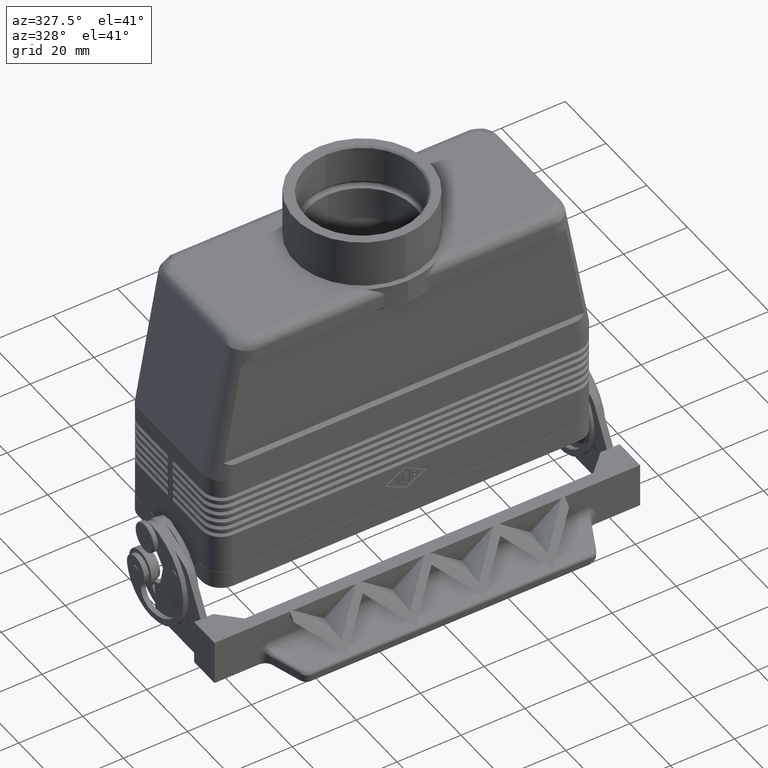
[diagram: clean part render]
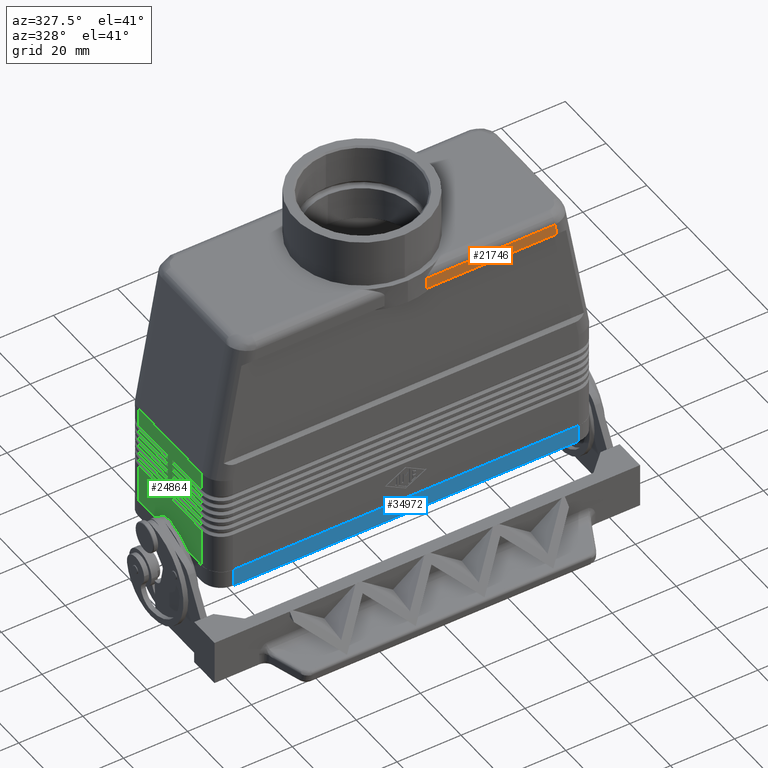
[diagram: same view with three faces highlighted in distinct colors, each labeled with its STEP entity id]
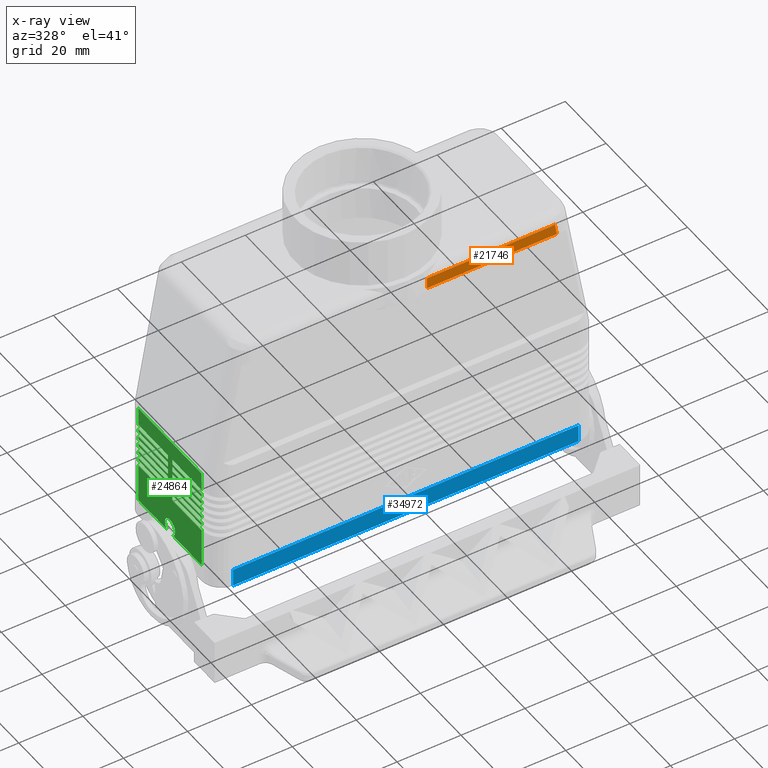
[diagram: x-ray of the same camera — body ghosted, the three highlighted faces saturated]
A machine part, auxiliary view with three faces highlighted in distinct colors.
The next image is the same camera in x-ray (body ghosted, the three faces saturated) — at least one of them is partly hidden behind the body in this view.
Their STEP definitions:

[orange] entity #21746 — the highlighted planar face has unit normal (0, -1, 0).
#5043=CARTESIAN_POINT('',(6.633249580710817,-21.499999999999993,79.000000000000028));
#5044=VERTEX_POINT('',#5043);
#5056=CARTESIAN_POINT('',(46.589870629284249,-21.499999999999993,79.000000000000028));
#5057=VERTEX_POINT('',#5056);
#5058=CARTESIAN_POINT('',(6.633249580710817,-21.499999999999993,79.000000000000028));
#5059=DIRECTION('',(1.0,0.0,0.0));
#5060=VECTOR('',#5059,39.956621048573432);
#5061=LINE('',#5058,#5060);
#5062=EDGE_CURVE('',#5044,#5057,#5061,.T.);
#5297=CARTESIAN_POINT('',(6.633249580710817,-21.499999999999993,75.500000000000000));
#5298=VERTEX_POINT('',#5297);
#5306=CARTESIAN_POINT('',(6.633249580710817,-21.499999999999993,79.000000000000028));
#5307=DIRECTION('',(0.0,0.0,-1.0));
#5308=VECTOR('',#5307,3.500000000000028);
#5309=LINE('',#5306,#5308);
#5310=EDGE_CURVE('',#5044,#5298,#5309,.T.);
#5430=CARTESIAN_POINT('',(47.207015061763883,-21.500000000000000,75.500000000000000));
#5431=VERTEX_POINT('',#5430);
#5432=CARTESIAN_POINT('',(46.589870629284249,-21.499999999999993,79.000000000000028));
#5433=DIRECTION('',(0.173648177666931,-1.999280E-015,-0.984807753012208));
#5434=VECTOR('',#5433,3.553993141600137);
#5435=LINE('',#5432,#5434);
#5436=EDGE_CURVE('',#5057,#5431,#5435,.T.);
#21730=CARTESIAN_POINT('',(54.0,-21.499999999999993,5.500000000000000));
#21731=DIRECTION('',(0.0,-1.0,0.0));
#21732=DIRECTION('',(0.0,0.0,-1.0));
#21733=AXIS2_PLACEMENT_3D('',#21730,#21731,#21732);
#21734=PLANE('',#21733);
#21735=ORIENTED_EDGE('',*,*,#5310,.T.);
#21736=CARTESIAN_POINT('',(6.633249580710817,-21.499999999999993,75.500000000000000));
#21737=DIRECTION('',(1.0,0.0,0.0));
#21738=VECTOR('',#21737,40.573765481053066);
#21739=LINE('',#21736,#21738);
#21740=EDGE_CURVE('',#5298,#5431,#21739,.T.);
#21741=ORIENTED_EDGE('',*,*,#21740,.T.);
#21742=ORIENTED_EDGE('',*,*,#5436,.F.);
#21743=ORIENTED_EDGE('',*,*,#5062,.F.);
#21744=EDGE_LOOP('',(#21735,#21741,#21742,#21743));
#21745=FACE_OUTER_BOUND('',#21744,.T.);
#21746=ADVANCED_FACE('',(#21745),#21734,.T.);

[blue] entity #34972 — the highlighted planar face has unit normal (0, -1, 0).
#34634=CARTESIAN_POINT('',(-54.0,-21.549999999999994,5.500000000000000));
#34635=VERTEX_POINT('',#34634);
#34643=CARTESIAN_POINT('',(54.0,-21.549999999999994,5.500000000000000));
#34644=VERTEX_POINT('',#34643);
#34645=CARTESIAN_POINT('',(54.0,-21.549999999999994,5.500000000000000));
#34646=DIRECTION('',(-1.0,0.0,0.0));
#34647=VECTOR('',#34646,108.0);
#34648=LINE('',#34645,#34647);
#34649=EDGE_CURVE('',#34644,#34635,#34648,.T.);
#34930=CARTESIAN_POINT('',(54.0,-21.549999999999994,0.0));
#34931=VERTEX_POINT('',#34930);
#34932=CARTESIAN_POINT('',(54.0,-21.549999999999994,0.0));
#34933=DIRECTION('',(0.0,0.0,1.0));
#34934=VECTOR('',#34933,5.500000000000000);
#34935=LINE('',#34932,#34934);
#34936=EDGE_CURVE('',#34931,#34644,#34935,.T.);
#34949=CARTESIAN_POINT('',(54.0,-21.549999999999994,0.0));
#34950=DIRECTION('',(0.0,-1.0,0.0));
#34951=DIRECTION('',(0.0,0.0,-1.0));
#34952=AXIS2_PLACEMENT_3D('',#34949,#34950,#34951);
#34953=PLANE('',#34952);
#34954=ORIENTED_EDGE('',*,*,#34649,.T.);
#34955=CARTESIAN_POINT('',(-54.0,-21.549999999999994,0.0));
#34956=VERTEX_POINT('',#34955);
#34957=CARTESIAN_POINT('',(-54.0,-21.549999999999994,0.0));
#34958=DIRECTION('',(0.0,0.0,1.0));
#34959=VECTOR('',#34958,5.500000000000000);
#34960=LINE('',#34957,#34959);
#34961=EDGE_CURVE('',#34956,#34635,#34960,.T.);
#34962=ORIENTED_EDGE('',*,*,#34961,.F.);
#34963=CARTESIAN_POINT('',(-54.0,-21.549999999999994,0.0));
#34964=DIRECTION('',(1.0,0.0,0.0));
#34965=VECTOR('',#34964,108.0);
#34966=LINE('',#34963,#34965);
#34967=EDGE_CURVE('',#34956,#34931,#34966,.T.);
#34968=ORIENTED_EDGE('',*,*,#34967,.T.);
#34969=ORIENTED_EDGE('',*,*,#34936,.T.);
#34970=EDGE_LOOP('',(#34954,#34962,#34968,#34969));
#34971=FACE_OUTER_BOUND('',#34970,.T.);
#34972=ADVANCED_FACE('',(#34971),#34953,.T.);

[green] entity #24864 — the highlighted planar face has unit normal (-1, 0, 0).
#7551=CARTESIAN_POINT('',(-60.0,-3.061516E-016,9.999999999999979));
#7552=VERTEX_POINT('',#7551);
#7585=CARTESIAN_POINT('',(-60.0,-1.499999999999964,5.500000000000000));
#7586=VERTEX_POINT('',#7585);
#7593=CARTESIAN_POINT('',(-60.0,0.0,7.500000000000000));
#7594=DIRECTION('',(1.0,0.0,0.0));
#7595=DIRECTION('',(0.0,0.0,1.0));
#7596=AXIS2_PLACEMENT_3D('',#7593,#7594,#7595);
#7597=CIRCLE('',#7596,2.499999999999978);
#7598=EDGE_CURVE('',#7552,#7586,#7597,.T.);
#16441=CARTESIAN_POINT('',(-60.0,1.499999999999964,5.500000000000000));
#16442=VERTEX_POINT('',#16441);
#16443=CARTESIAN_POINT('',(-60.0,0.0,7.500000000000000));
#16444=DIRECTION('',(1.0,0.0,0.0));
#16445=DIRECTION('',(0.0,0.0,1.0));
#16446=AXIS2_PLACEMENT_3D('',#16443,#16444,#16445);
#16447=CIRCLE('',#16446,2.499999999999978);
#16448=EDGE_CURVE('',#16442,#7552,#16447,.T.);
#17364=CARTESIAN_POINT('',(-60.0,15.500000000000000,5.500000000000000));
#17365=VERTEX_POINT('',#17364);
#17366=CARTESIAN_POINT('',(-60.0,1.499999999999964,5.500000000000000));
#17367=DIRECTION('',(0.0,1.0,0.0));
#17368=VECTOR('',#17367,14.000000000000036);
#17369=LINE('',#17366,#17368);
#17370=EDGE_CURVE('',#16442,#17365,#17369,.T.);
#20966=CARTESIAN_POINT('',(-60.0,15.500000000000000,37.500000000000000));
#20967=VERTEX_POINT('',#20966);
#20974=CARTESIAN_POINT('',(-60.0,-15.499999999999996,37.500000000000000));
#20975=VERTEX_POINT('',#20974);
#20976=CARTESIAN_POINT('',(-60.0,-15.499999999999996,37.500000000000000));
#20977=DIRECTION('',(0.0,1.0,0.0));
#20978=VECTOR('',#20977,30.999999999999996);
#20979=LINE('',#20976,#20978);
#20980=EDGE_CURVE('',#20975,#20967,#20979,.T.);
#22152=CARTESIAN_POINT('',(-60.0,-1.350560861179073,19.332842712474609));
#22153=VERTEX_POINT('',#22152);
#22161=CARTESIAN_POINT('',(-60.0,-0.950560861179072,18.767157287525382));
#22162=VERTEX_POINT('',#22161);
#22163=CARTESIAN_POINT('',(-60.0,-1.350560861179072,18.767157287525382));
#22164=DIRECTION('',(-1.0,0.0,0.0));
#22165=DIRECTION('',(0.0,0.0,1.0));
#22166=AXIS2_PLACEMENT_3D('',#22163,#22164,#22165);
#22167=ELLIPSE('',#22166,0.565685424949232,0.400000000000000);
#22168=EDGE_CURVE('',#22153,#22162,#22167,.T.);
#22188=CARTESIAN_POINT('',(-60.0,-15.499999999999996,19.332842712474609));
#22189=VERTEX_POINT('',#22188);
#22197=CARTESIAN_POINT('',(-60.0,-15.499999999999996,19.332842712474609));
#22198=DIRECTION('',(0.0,1.0,0.0));
#22199=VECTOR('',#22198,14.149439138820924);
#22200=LINE('',#22197,#22199);
#22201=EDGE_CURVE('',#22189,#22153,#22200,.T.);
#22378=CARTESIAN_POINT('',(-60.0,-0.950560861179072,18.232842712474604));
#22379=VERTEX_POINT('',#22378);
#22380=CARTESIAN_POINT('',(-60.0,-1.350560861179073,17.667157287525388));
#22381=VERTEX_POINT('',#22380);
#22382=CARTESIAN_POINT('',(-60.0,-1.350560861179072,18.232842712474604));
#22383=DIRECTION('',(-1.0,0.0,0.0));
#22384=DIRECTION('',(0.0,0.0,-1.0));
#22385=AXIS2_PLACEMENT_3D('',#22382,#22383,#22384);
#22386=ELLIPSE('',#22385,0.565685424949226,0.399999999999996);
#22387=EDGE_CURVE('',#22379,#22381,#22386,.T.);
#22423=CARTESIAN_POINT('',(-60.0,-15.499999999999996,17.667157287525388));
#22424=VERTEX_POINT('',#22423);
#22425=CARTESIAN_POINT('',(-60.0,-1.350560861179073,17.667157287525388));
#22426=DIRECTION('',(0.0,-1.0,0.0));
#22427=VECTOR('',#22426,14.149439138820924);
#22428=LINE('',#22425,#22427);
#22429=EDGE_CURVE('',#22381,#22424,#22428,.T.);
#22653=CARTESIAN_POINT('',(-60.0,-0.950560861179072,18.767157287525382));
#22654=DIRECTION('',(0.0,0.0,-1.0));
#22655=VECTOR('',#22654,0.534314575050779);
#22656=LINE('',#22653,#22655);
#22657=EDGE_CURVE('',#22162,#22379,#22656,.T.);
#23350=CARTESIAN_POINT('',(-60.0,-15.499999999999996,5.500000000000000));
#23351=VERTEX_POINT('',#23350);
#23352=CARTESIAN_POINT('',(-60.0,-15.499999999999996,5.500000000000000));
#23353=DIRECTION('',(0.0,0.0,1.0));
#23354=VECTOR('',#23353,12.167157287525388);
#23355=LINE('',#23352,#23354);
#23356=EDGE_CURVE('',#23351,#22424,#23355,.T.);
#23638=CARTESIAN_POINT('',(-60.0,-0.950560861179072,20.732842712474600));
#23639=VERTEX_POINT('',#23638);
#23640=CARTESIAN_POINT('',(-60.0,-1.350560861179073,20.167157287525388));
#23641=VERTEX_POINT('',#23640);
#23642=CARTESIAN_POINT('',(-60.0,-1.350560861179072,20.732842712474600));
#23643=DIRECTION('',(-1.0,0.0,0.0));
#23644=DIRECTION('',(0.0,0.0,-1.0));
#23645=AXIS2_PLACEMENT_3D('',#23642,#23643,#23644);
#23646=ELLIPSE('',#23645,0.565685424949228,0.399999999999998);
#23647=EDGE_CURVE('',#23639,#23641,#23646,.T.);
#23735=CARTESIAN_POINT('',(-60.0,-1.350560861179073,21.832842712474609));
#23736=VERTEX_POINT('',#23735);
#23744=CARTESIAN_POINT('',(-60.0,-0.950560861179072,21.267157287525382));
#23745=VERTEX_POINT('',#23744);
#23746=CARTESIAN_POINT('',(-60.0,-1.350560861179072,21.267157287525382));
#23747=DIRECTION('',(-1.0,0.0,0.0));
#23748=DIRECTION('',(0.0,0.0,1.0));
#23749=AXIS2_PLACEMENT_3D('',#23746,#23747,#23748);
#23750=ELLIPSE('',#23749,0.565685424949232,0.400000000000000);
#23751=EDGE_CURVE('',#23736,#23745,#23750,.T.);
#23851=CARTESIAN_POINT('',(-60.0,-15.499999999999996,20.167157287525388));
#23852=VERTEX_POINT('',#23851);
#23853=CARTESIAN_POINT('',(-60.0,-1.350560861179073,20.167157287525388));
#23854=DIRECTION('',(0.0,-1.0,0.0));
#23855=VECTOR('',#23854,14.149439138820924);
#23856=LINE('',#23853,#23855);
#23857=EDGE_CURVE('',#23641,#23852,#23856,.T.);
#24143=CARTESIAN_POINT('',(-60.0,-15.499999999999996,21.832842712474594));
#24144=VERTEX_POINT('',#24143);
#24179=CARTESIAN_POINT('',(-60.0,-15.499999999999996,21.832842712474594));
#24180=DIRECTION('',(0.0,1.0,0.0));
#24181=VECTOR('',#24180,14.149439138820924);
#24182=LINE('',#24179,#24181);
#24183=EDGE_CURVE('',#24144,#23736,#24182,.T.);
#24312=CARTESIAN_POINT('',(-60.0,-0.950560861179072,21.267157287525382));
#24313=DIRECTION('',(0.0,0.0,-1.0));
#24314=VECTOR('',#24313,0.534314575050782);
#24315=LINE('',#24312,#24314);
#24316=EDGE_CURVE('',#23745,#23639,#24315,.T.);
#24426=CARTESIAN_POINT('',(-60.0,-15.499999999999996,5.500000000000000));
#24427=DIRECTION('',(-1.0,0.0,0.0));
#24428=DIRECTION('',(0.0,0.0,1.0));
#24429=AXIS2_PLACEMENT_3D('',#24426,#24427,#24428);
#24430=PLANE('',#24429);
#24431=ORIENTED_EDGE('',*,*,#16448,.T.);
#24432=ORIENTED_EDGE('',*,*,#7598,.T.);
#24433=CARTESIAN_POINT('',(-60.0,-15.499999999999996,5.500000000000000));
#24434=DIRECTION('',(0.0,1.0,0.0));
#24435=VECTOR('',#24434,14.000000000000032);
#24436=LINE('',#24433,#24435);
#24437=EDGE_CURVE('',#23351,#7586,#24436,.T.);
#24438=ORIENTED_EDGE('',*,*,#24437,.F.);
#24439=ORIENTED_EDGE('',*,*,#23356,.T.);
#24440=ORIENTED_EDGE('',*,*,#22429,.F.);
#24441=ORIENTED_EDGE('',*,*,#22387,.F.);
#24442=ORIENTED_EDGE('',*,*,#22657,.F.);
#24443=ORIENTED_EDGE('',*,*,#22168,.F.);
#24444=ORIENTED_EDGE('',*,*,#22201,.F.);
#24445=CARTESIAN_POINT('',(-60.0,-15.499999999999996,19.332842712474609));
#24446=DIRECTION('',(0.0,0.0,1.0));
#24447=VECTOR('',#24446,0.834314575050779);
#24448=LINE('',#24445,#24447);
#24449=EDGE_CURVE('',#22189,#23852,#24448,.T.);
#24450=ORIENTED_EDGE('',*,*,#24449,.T.);
#24451=ORIENTED_EDGE('',*,*,#23857,.F.);
#24452=ORIENTED_EDGE('',*,*,#23647,.F.);
#24453=ORIENTED_EDGE('',*,*,#24316,.F.);
#24454=ORIENTED_EDGE('',*,*,#23751,.F.);
#24455=ORIENTED_EDGE('',*,*,#24183,.F.);
#24456=CARTESIAN_POINT('',(-60.0,-15.499999999999996,22.667157287525388));
#24457=VERTEX_POINT('',#24456);
#24458=CARTESIAN_POINT('',(-60.0,-15.499999999999996,21.832842712474594));
#24459=DIRECTION('',(0.0,0.0,1.0));
#24460=VECTOR('',#24459,0.834314575050794);
#24461=LINE('',#24458,#24460);
#24462=EDGE_CURVE('',#24144,#24457,#24461,.T.);
#24463=ORIENTED_EDGE('',*,*,#24462,.T.);
#24464=CARTESIAN_POINT('',(-60.0,-1.350560861179073,22.667157287525388));
#24465=VERTEX_POINT('',#24464);
#24466=CARTESIAN_POINT('',(-60.0,-1.350560861179073,22.667157287525388));
#24467=DIRECTION('',(0.0,-1.0,0.0));
#24468=VECTOR('',#24467,14.149439138820924);
#24469=LINE('',#24466,#24468);
#24470=EDGE_CURVE('',#24465,#24457,#24469,.T.);
#24471=ORIENTED_EDGE('',*,*,#24470,.F.);
#24472=CARTESIAN_POINT('',(-60.0,-0.950560861179072,23.232842712474600));
#24473=VERTEX_POINT('',#24472);
#24474=CARTESIAN_POINT('',(-60.0,-1.350560861179072,23.232842712474600));
#24475=DIRECTION('',(-1.0,0.0,0.0));
#24476=DIRECTION('',(0.0,0.0,-1.0));
#24477=AXIS2_PLACEMENT_3D('',#24474,#24475,#24476);
#24478=ELLIPSE('',#24477,0.565685424949228,0.399999999999998);
#24479=EDGE_CURVE('',#24473,#24465,#24478,.T.);
#24480=ORIENTED_EDGE('',*,*,#24479,.F.);
#24481=CARTESIAN_POINT('',(-60.0,-0.950560861179072,23.767157287525382));
#24482=VERTEX_POINT('',#24481);
#24483=CARTESIAN_POINT('',(-60.0,-0.950560861179072,23.767157287525382));
#24484=DIRECTION('',(0.0,0.0,-1.0));
#24485=VECTOR('',#24484,0.534314575050782);
#24486=LINE('',#24483,#24485);
#24487=EDGE_CURVE('',#24482,#24473,#24486,.T.);
#24488=ORIENTED_EDGE('',*,*,#24487,.F.);
#24489=CARTESIAN_POINT('',(-60.0,-1.350560861179073,24.332842712474609));
#24490=VERTEX_POINT('',#24489);
#24491=CARTESIAN_POINT('',(-60.0,-1.350560861179072,23.767157287525382));
#24492=DIRECTION('',(-1.0,0.0,0.0));
#24493=DIRECTION('',(0.0,0.0,1.0));
#24494=AXIS2_PLACEMENT_3D('',#24491,#24492,#24493);
#24495=ELLIPSE('',#24494,0.565685424949232,0.400000000000000);
#24496=EDGE_CURVE('',#24490,#24482,#24495,.T.);
#24497=ORIENTED_EDGE('',*,*,#24496,.F.);
#24498=CARTESIAN_POINT('',(-60.0,-15.499999999999996,24.332842712474609));
#24499=VERTEX_POINT('',#24498);
#24500=CARTESIAN_POINT('',(-60.0,-15.499999999999996,24.332842712474609));
#24501=DIRECTION('',(0.0,1.0,0.0));
#24502=VECTOR('',#24501,14.149439138820924);
#24503=LINE('',#24500,#24502);
#24504=EDGE_CURVE('',#24499,#24490,#24503,.T.);
#24505=ORIENTED_EDGE('',*,*,#24504,.F.);
#24506=CARTESIAN_POINT('',(-60.000000000000007,-15.500000000000005,25.250000000000000));
#24507=VERTEX_POINT('',#24506);
#24508=CARTESIAN_POINT('',(-60.0,-15.499999999999996,24.332842712474609));
#24509=DIRECTION('',(0.0,0.0,1.0));
#24510=VECTOR('',#24509,0.917157287525392);
#24511=LINE('',#24508,#24510);
#24512=EDGE_CURVE('',#24499,#24507,#24511,.T.);
#24513=ORIENTED_EDGE('',*,*,#24512,.T.);
#24514=CARTESIAN_POINT('',(-60.000000000000007,-1.150560861179073,25.250000000000000));
#24515=VERTEX_POINT('',#24514);
#24516=CARTESIAN_POINT('',(-60.000000000000007,-15.500000000000005,25.250000000000000));
#24517=DIRECTION('',(0.0,1.0,0.0));
#24518=VECTOR('',#24517,14.349439138820932);
#24519=LINE('',#24516,#24518);
#24520=EDGE_CURVE('',#24507,#24515,#24519,.T.);
#24521=ORIENTED_EDGE('',*,*,#24520,.T.);
#24522=CARTESIAN_POINT('',(-60.000000000000007,-1.150560861179073,26.750000000000000));
#24523=VERTEX_POINT('',#24522);
#24524=CARTESIAN_POINT('',(-60.000000000000007,-1.150560861179073,25.250000000000000));
#24525=DIRECTION('',(0.0,0.0,1.0));
#24526=VECTOR('',#24525,1.500000000000000);
#24527=LINE('',#24524,#24526);
#24528=EDGE_CURVE('',#24515,#24523,#24527,.T.);
#24529=ORIENTED_EDGE('',*,*,#24528,.T.);
#24530=CARTESIAN_POINT('',(-60.000000000000007,-15.500000000000005,26.750000000000000));
#24531=VERTEX_POINT('',#24530);
#24532=CARTESIAN_POINT('',(-60.000000000000007,-1.150560861179073,26.750000000000000));
#24533=DIRECTION('',(0.0,-1.0,0.0));
#24534=VECTOR('',#24533,14.349439138820932);
#24535=LINE('',#24532,#24534);
#24536=EDGE_CURVE('',#24523,#24531,#24535,.T.);
#24537=ORIENTED_EDGE('',*,*,#24536,.T.);
#24538=CARTESIAN_POINT('',(-60.000000000000007,-15.500000000000005,27.750000000000000));
#24539=VERTEX_POINT('',#24538);
#24540=CARTESIAN_POINT('',(-60.000000000000007,-15.500000000000005,26.750000000000000));
#24541=DIRECTION('',(0.0,0.0,1.0));
#24542=VECTOR('',#24541,1.0);
#24543=LINE('',#24540,#24542);
#24544=EDGE_CURVE('',#24531,#24539,#24543,.T.);
#24545=ORIENTED_EDGE('',*,*,#24544,.T.);
#24546=CARTESIAN_POINT('',(-60.000000000000007,-1.150560861179073,27.750000000000000));
#24547=VERTEX_POINT('',#24546);
#24548=CARTESIAN_POINT('',(-60.000000000000007,-15.500000000000005,27.750000000000000));
#24549=DIRECTION('',(0.0,1.0,0.0));
#24550=VECTOR('',#24549,14.349439138820932);
#24551=LINE('',#24548,#24550);
#24552=EDGE_CURVE('',#24539,#24547,#24551,.T.);
#24553=ORIENTED_EDGE('',*,*,#24552,.T.);
#24554=CARTESIAN_POINT('',(-60.000000000000007,-1.150560861179073,29.250000000000000));
#24555=VERTEX_POINT('',#24554);
#24556=CARTESIAN_POINT('',(-60.000000000000007,-1.150560861179073,27.750000000000000));
#24557=DIRECTION('',(0.0,0.0,1.0));
#24558=VECTOR('',#24557,1.500000000000000);
#24559=LINE('',#24556,#24558);
#24560=EDGE_CURVE('',#24547,#24555,#24559,.T.);
#24561=ORIENTED_EDGE('',*,*,#24560,.T.);
#24562=CARTESIAN_POINT('',(-60.000000000000007,-15.500000000000005,29.250000000000000));
#24563=VERTEX_POINT('',#24562);
#24564=CARTESIAN_POINT('',(-60.000000000000007,-1.150560861179073,29.250000000000000));
#24565=DIRECTION('',(0.0,-1.0,0.0));
#24566=VECTOR('',#24565,14.349439138820932);
#24567=LINE('',#24564,#24566);
#24568=EDGE_CURVE('',#24555,#24563,#24567,.T.);
#24569=ORIENTED_EDGE('',*,*,#24568,.T.);
#24570=CARTESIAN_POINT('',(-60.000000000000007,-15.500000000000005,30.250000000000000));
#24571=VERTEX_POINT('',#24570);
#24572=CARTESIAN_POINT('',(-60.000000000000007,-15.500000000000005,29.250000000000000));
#24573=DIRECTION('',(0.0,0.0,1.0));
#24574=VECTOR('',#24573,1.0);
#24575=LINE('',#24572,#24574);
#24576=EDGE_CURVE('',#24563,#24571,#24575,.T.);
#24577=ORIENTED_EDGE('',*,*,#24576,.T.);
#24578=CARTESIAN_POINT('',(-60.000000000000007,-1.150560861179073,30.250000000000000));
#24579=VERTEX_POINT('',#24578);
#24580=CARTESIAN_POINT('',(-60.000000000000007,-15.500000000000005,30.250000000000000));
#24581=DIRECTION('',(0.0,1.0,0.0));
#24582=VECTOR('',#24581,14.349439138820932);
#24583=LINE('',#24580,#24582);
#24584=EDGE_CURVE('',#24571,#24579,#24583,.T.);
#24585=ORIENTED_EDGE('',*,*,#24584,.T.);
#24586=CARTESIAN_POINT('',(-60.000000000000007,-1.150560861179073,31.750000000000000));
#24587=VERTEX_POINT('',#24586);
#24588=CARTESIAN_POINT('',(-60.000000000000007,-1.150560861179073,30.250000000000000));
#24589=DIRECTION('',(0.0,0.0,1.0));
#24590=VECTOR('',#24589,1.500000000000000);
#24591=LINE('',#24588,#24590);
#24592=EDGE_CURVE('',#24579,#24587,#24591,.T.);
#24593=ORIENTED_EDGE('',*,*,#24592,.T.);
#24594=CARTESIAN_POINT('',(-60.000000000000007,-15.500000000000005,31.750000000000000));
#24595=VERTEX_POINT('',#24594);
#24596=CARTESIAN_POINT('',(-60.000000000000007,-1.150560861179073,31.750000000000000));
#24597=DIRECTION('',(0.0,-1.0,0.0));
#24598=VECTOR('',#24597,14.349439138820932);
#24599=LINE('',#24596,#24598);
#24600=EDGE_CURVE('',#24587,#24595,#24599,.T.);
#24601=ORIENTED_EDGE('',*,*,#24600,.T.);
#24602=CARTESIAN_POINT('',(-60.000000000000007,-15.500000000000005,31.750000000000000));
#24603=DIRECTION('',(0.0,0.0,1.0));
#24604=VECTOR('',#24603,5.750000000000000);
#24605=LINE('',#24602,#24604);
#24606=EDGE_CURVE('',#24595,#20975,#24605,.T.);
#24607=ORIENTED_EDGE('',*,*,#24606,.T.);
#24608=ORIENTED_EDGE('',*,*,#20980,.T.);
#24609=CARTESIAN_POINT('',(-60.000000000000007,15.500000000000005,31.750000000000000));
#24610=VERTEX_POINT('',#24609);
#24611=CARTESIAN_POINT('',(-60.000000000000007,15.500000000000005,31.750000000000000));
#24612=DIRECTION('',(0.0,0.0,1.0));
#24613=VECTOR('',#24612,5.750000000000000);
#24614=LINE('',#24611,#24613);
#24615=EDGE_CURVE('',#24610,#20967,#24614,.T.);
#24616=ORIENTED_EDGE('',*,*,#24615,.F.);
#24617=CARTESIAN_POINT('',(-60.000000000000007,1.150560861179073,31.750000000000000));
#24618=VERTEX_POINT('',#24617);
#24619=CARTESIAN_POINT('',(-60.000000000000007,15.500000000000005,31.750000000000000));
#24620=DIRECTION('',(0.0,-1.0,0.0));
#24621=VECTOR('',#24620,14.349439138820932);
#24622=LINE('',#24619,#24621);
#24623=EDGE_CURVE('',#24610,#24618,#24622,.T.);
#24624=ORIENTED_EDGE('',*,*,#24623,.T.);
#24625=CARTESIAN_POINT('',(-60.000000000000007,1.150560861179073,30.250000000000000));
#24626=VERTEX_POINT('',#24625);
#24627=CARTESIAN_POINT('',(-60.000000000000007,1.150560861179073,31.750000000000000));
#24628=DIRECTION('',(0.0,0.0,-1.0));
#24629=VECTOR('',#24628,1.500000000000000);
#24630=LINE('',#24627,#24629);
#24631=EDGE_CURVE('',#24618,#24626,#24630,.T.);
#24632=ORIENTED_EDGE('',*,*,#24631,.T.);
#24633=CARTESIAN_POINT('',(-60.000000000000007,15.500000000000005,30.250000000000000));
#24634=VERTEX_POINT('',#24633);
#24635=CARTESIAN_POINT('',(-60.000000000000007,1.150560861179073,30.250000000000000));
#24636=DIRECTION('',(0.0,1.0,0.0));
#24637=VECTOR('',#24636,14.349439138820932);
#24638=LINE('',#24635,#24637);
#24639=EDGE_CURVE('',#24626,#24634,#24638,.T.);
#24640=ORIENTED_EDGE('',*,*,#24639,.T.);
#24641=CARTESIAN_POINT('',(-60.000000000000007,15.500000000000005,29.250000000000000));
#24642=VERTEX_POINT('',#24641);
#24643=CARTESIAN_POINT('',(-60.000000000000007,15.500000000000005,29.250000000000000));
#24644=DIRECTION('',(0.0,0.0,1.0));
#24645=VECTOR('',#24644,1.0);
#24646=LINE('',#24643,#24645);
#24647=EDGE_CURVE('',#24642,#24634,#24646,.T.);
#24648=ORIENTED_EDGE('',*,*,#24647,.F.);
#24649=CARTESIAN_POINT('',(-60.000000000000007,1.150560861179073,29.250000000000000));
#24650=VERTEX_POINT('',#24649);
#24651=CARTESIAN_POINT('',(-60.000000000000007,15.500000000000005,29.250000000000000));
#24652=DIRECTION('',(0.0,-1.0,0.0));
#24653=VECTOR('',#24652,14.349439138820932);
#24654=LINE('',#24651,#24653);
#24655=EDGE_CURVE('',#24642,#24650,#24654,.T.);
#24656=ORIENTED_EDGE('',*,*,#24655,.T.);
#24657=CARTESIAN_POINT('',(-60.000000000000007,1.150560861179073,27.750000000000000));
#24658=VERTEX_POINT('',#24657);
#24659=CARTESIAN_POINT('',(-60.000000000000007,1.150560861179073,29.250000000000000));
#24660=DIRECTION('',(0.0,0.0,-1.0));
#24661=VECTOR('',#24660,1.500000000000000);
#24662=LINE('',#24659,#24661);
#24663=EDGE_CURVE('',#24650,#24658,#24662,.T.);
#24664=ORIENTED_EDGE('',*,*,#24663,.T.);
#24665=CARTESIAN_POINT('',(-60.000000000000007,15.500000000000005,27.750000000000000));
#24666=VERTEX_POINT('',#24665);
#24667=CARTESIAN_POINT('',(-60.000000000000007,1.150560861179073,27.750000000000000));
#24668=DIRECTION('',(0.0,1.0,0.0));
#24669=VECTOR('',#24668,14.349439138820932);
#24670=LINE('',#24667,#24669);
#24671=EDGE_CURVE('',#24658,#24666,#24670,.T.);
#24672=ORIENTED_EDGE('',*,*,#24671,.T.);
#24673=CARTESIAN_POINT('',(-60.000000000000007,15.500000000000005,26.750000000000000));
#24674=VERTEX_POINT('',#24673);
#24675=CARTESIAN_POINT('',(-60.000000000000007,15.500000000000005,26.750000000000000));
#24676=DIRECTION('',(0.0,0.0,1.0));
#24677=VECTOR('',#24676,1.0);
#24678=LINE('',#24675,#24677);
#24679=EDGE_CURVE('',#24674,#24666,#24678,.T.);
#24680=ORIENTED_EDGE('',*,*,#24679,.F.);
#24681=CARTESIAN_POINT('',(-60.000000000000007,1.150560861179073,26.750000000000000));
#24682=VERTEX_POINT('',#24681);
#24683=CARTESIAN_POINT('',(-60.000000000000007,15.500000000000005,26.750000000000000));
#24684=DIRECTION('',(0.0,-1.0,0.0));
#24685=VECTOR('',#24684,14.349439138820932);
#24686=LINE('',#24683,#24685);
#24687=EDGE_CURVE('',#24674,#24682,#24686,.T.);
#24688=ORIENTED_EDGE('',*,*,#24687,.T.);
#24689=CARTESIAN_POINT('',(-60.000000000000007,1.150560861179073,25.250000000000000));
#24690=VERTEX_POINT('',#24689);
#24691=CARTESIAN_POINT('',(-60.000000000000007,1.150560861179073,26.750000000000000));
#24692=DIRECTION('',(0.0,0.0,-1.0));
#24693=VECTOR('',#24692,1.500000000000000);
#24694=LINE('',#24691,#24693);
#24695=EDGE_CURVE('',#24682,#24690,#24694,.T.);
#24696=ORIENTED_EDGE('',*,*,#24695,.T.);
#24697=CARTESIAN_POINT('',(-60.000000000000007,15.500000000000005,25.250000000000000));
#24698=VERTEX_POINT('',#24697);
#24699=CARTESIAN_POINT('',(-60.000000000000007,1.150560861179073,25.250000000000000));
#24700=DIRECTION('',(0.0,1.0,0.0));
#24701=VECTOR('',#24700,14.349439138820932);
#24702=LINE('',#24699,#24701);
#24703=EDGE_CURVE('',#24690,#24698,#24702,.T.);
#24704=ORIENTED_EDGE('',*,*,#24703,.T.);
#24705=CARTESIAN_POINT('',(-60.0,15.500000000000000,24.332842712474616));
#24706=VERTEX_POINT('',#24705);
#24707=CARTESIAN_POINT('',(-60.0,15.500000000000000,24.332842712474616));
#24708=DIRECTION('',(0.0,0.0,1.0));
#24709=VECTOR('',#24708,0.917157287525384);
#24710=LINE('',#24707,#24709);
#24711=EDGE_CURVE('',#24706,#24698,#24710,.T.);
#24712=ORIENTED_EDGE('',*,*,#24711,.F.);
#24713=CARTESIAN_POINT('',(-60.0,1.350560861179073,24.332842712474609));
#24714=VERTEX_POINT('',#24713);
#24715=CARTESIAN_POINT('',(-60.0,1.350560861179073,24.332842712474609));
#24716=DIRECTION('',(0.0,1.0,0.0));
#24717=VECTOR('',#24716,14.149439138820927);
#24718=LINE('',#24715,#24717);
#24719=EDGE_CURVE('',#24714,#24706,#24718,.T.);
#24720=ORIENTED_EDGE('',*,*,#24719,.F.);
#24721=CARTESIAN_POINT('',(-60.0,0.950560861179072,23.767157287525382));
#24722=VERTEX_POINT('',#24721);
#24723=CARTESIAN_POINT('',(-60.0,1.350560861179073,23.767157287525382));
#24724=DIRECTION('',(-1.0,0.0,0.0));
#24725=DIRECTION('',(0.0,0.0,1.0));
#24726=AXIS2_PLACEMENT_3D('',#24723,#24724,#24725);
#24727=ELLIPSE('',#24726,0.565685424949228,0.399999999999998);
#24728=EDGE_CURVE('',#24722,#24714,#24727,.T.);
#24729=ORIENTED_EDGE('',*,*,#24728,.F.);
#24730=CARTESIAN_POINT('',(-60.0,0.950560861179072,23.232842712474611));
#24731=VERTEX_POINT('',#24730);
#24732=CARTESIAN_POINT('',(-60.0,0.950560861179072,23.232842712474611));
#24733=DIRECTION('',(0.0,0.0,1.0));
#24734=VECTOR('',#24733,0.534314575050772);
#24735=LINE('',#24732,#24734);
#24736=EDGE_CURVE('',#24731,#24722,#24735,.T.);
#24737=ORIENTED_EDGE('',*,*,#24736,.F.);
#24738=CARTESIAN_POINT('',(-60.0,1.350560861179073,22.667157287525388));
#24739=VERTEX_POINT('',#24738);
#24740=CARTESIAN_POINT('',(-60.0,1.350560861179073,23.232842712474611));
#24741=DIRECTION('',(-1.0,0.0,0.0));
#24742=DIRECTION('',(0.0,0.0,-1.0));
#24743=AXIS2_PLACEMENT_3D('',#24740,#24741,#24742);
#24744=ELLIPSE('',#24743,0.565685424949232,0.400000000000000);
#24745=EDGE_CURVE('',#24739,#24731,#24744,.T.);
#24746=ORIENTED_EDGE('',*,*,#24745,.F.);
#24747=CARTESIAN_POINT('',(-60.0,15.500000000000000,22.667157287525388));
#24748=VERTEX_POINT('',#24747);
#24749=CARTESIAN_POINT('',(-60.0,15.500000000000000,22.667157287525388));
#24750=DIRECTION('',(0.0,-1.0,0.0));
#24751=VECTOR('',#24750,14.149439138820927);
#24752=LINE('',#24749,#24751);
#24753=EDGE_CURVE('',#24748,#24739,#24752,.T.);
#24754=ORIENTED_EDGE('',*,*,#24753,.F.);
#24755=CARTESIAN_POINT('',(-60.0,15.500000000000000,21.832842712474616));
#24756=VERTEX_POINT('',#24755);
#24757=CARTESIAN_POINT('',(-60.0,15.500000000000000,21.832842712474616));
#24758=DIRECTION('',(0.0,0.0,1.0));
#24759=VECTOR('',#24758,0.834314575050772);
#24760=LINE('',#24757,#24759);
#24761=EDGE_CURVE('',#24756,#24748,#24760,.T.);
#24762=ORIENTED_EDGE('',*,*,#24761,.F.);
#24763=CARTESIAN_POINT('',(-60.0,1.350560861179073,21.832842712474609));
#24764=VERTEX_POINT('',#24763);
#24765=CARTESIAN_POINT('',(-60.0,1.350560861179073,21.832842712474609));
#24766=DIRECTION('',(0.0,1.0,0.0));
#24767=VECTOR('',#24766,14.149439138820927);
#24768=LINE('',#24765,#24767);
#24769=EDGE_CURVE('',#24764,#24756,#24768,.T.);
#24770=ORIENTED_EDGE('',*,*,#24769,.F.);
#24771=CARTESIAN_POINT('',(-60.0,0.950560861179072,21.267157287525382));
#24772=VERTEX_POINT('',#24771);
#24773=CARTESIAN_POINT('',(-60.0,1.350560861179073,21.267157287525382));
#24774=DIRECTION('',(-1.0,0.0,0.0));
#24775=DIRECTION('',(0.0,0.0,1.0));
#24776=AXIS2_PLACEMENT_3D('',#24773,#24774,#24775);
#24777=ELLIPSE('',#24776,0.565685424949228,0.399999999999998);
#24778=EDGE_CURVE('',#24772,#24764,#24777,.T.);
#24779=ORIENTED_EDGE('',*,*,#24778,.F.);
#24780=CARTESIAN_POINT('',(-60.0,0.950560861179072,20.732842712474611));
#24781=VERTEX_POINT('',#24780);
#24782=CARTESIAN_POINT('',(-60.0,0.950560861179072,20.732842712474611));
#24783=DIRECTION('',(0.0,0.0,1.0));
#24784=VECTOR('',#24783,0.534314575050772);
#24785=LINE('',#24782,#24784);
#24786=EDGE_CURVE('',#24781,#24772,#24785,.T.);
#24787=ORIENTED_EDGE('',*,*,#24786,.F.);
#24788=CARTESIAN_POINT('',(-60.0,1.350560861179073,20.167157287525388));
#24789=VERTEX_POINT('',#24788);
#24790=CARTESIAN_POINT('',(-60.0,1.350560861179073,20.732842712474611));
#24791=DIRECTION('',(-1.0,0.0,0.0));
#24792=DIRECTION('',(0.0,0.0,-1.0));
#24793=AXIS2_PLACEMENT_3D('',#24790,#24791,#24792);
#24794=ELLIPSE('',#24793,0.565685424949232,0.400000000000000);
#24795=EDGE_CURVE('',#24789,#24781,#24794,.T.);
#24796=ORIENTED_EDGE('',*,*,#24795,.F.);
#24797=CARTESIAN_POINT('',(-60.0,15.500000000000000,20.167157287525388));
#24798=VERTEX_POINT('',#24797);
#24799=CARTESIAN_POINT('',(-60.0,15.500000000000000,20.167157287525388));
#24800=DIRECTION('',(0.0,-1.0,0.0));
#24801=VECTOR('',#24800,14.149439138820927);
#24802=LINE('',#24799,#24801);
#24803=EDGE_CURVE('',#24798,#24789,#24802,.T.);
#24804=ORIENTED_EDGE('',*,*,#24803,.F.);
#24805=CARTESIAN_POINT('',(-60.0,15.500000000000000,19.332842712474619));
#24806=VERTEX_POINT('',#24805);
#24807=CARTESIAN_POINT('',(-60.0,15.500000000000000,19.332842712474619));
#24808=DIRECTION('',(0.0,0.0,1.0));
#24809=VECTOR('',#24808,0.834314575050769);
#24810=LINE('',#24807,#24809);
#24811=EDGE_CURVE('',#24806,#24798,#24810,.T.);
#24812=ORIENTED_EDGE('',*,*,#24811,.F.);
#24813=CARTESIAN_POINT('',(-60.0,1.350560861179073,19.332842712474609));
#24814=VERTEX_POINT('',#24813);
#24815=CARTESIAN_POINT('',(-60.0,1.350560861179073,19.332842712474609));
#24816=DIRECTION('',(0.0,1.0,0.0));
#24817=VECTOR('',#24816,14.149439138820927);
#24818=LINE('',#24815,#24817);
#24819=EDGE_CURVE('',#24814,#24806,#24818,.T.);
#24820=ORIENTED_EDGE('',*,*,#24819,.F.);
#24821=CARTESIAN_POINT('',(-60.0,0.950560861179072,18.767157287525382));
#24822=VERTEX_POINT('',#24821);
#24823=CARTESIAN_POINT('',(-60.0,1.350560861179073,18.767157287525382));
#24824=DIRECTION('',(-1.0,0.0,0.0));
#24825=DIRECTION('',(0.0,0.0,1.0));
#24826=AXIS2_PLACEMENT_3D('',#24823,#24824,#24825);
#24827=ELLIPSE('',#24826,0.565685424949226,0.399999999999996);
#24828=EDGE_CURVE('',#24822,#24814,#24827,.T.);
#24829=ORIENTED_EDGE('',*,*,#24828,.F.);
#24830=CARTESIAN_POINT('',(-60.0,0.950560861179072,18.232842712474614));
#24831=VERTEX_POINT('',#24830);
#24832=CARTESIAN_POINT('',(-60.0,0.950560861179072,18.232842712474614));
#24833=DIRECTION('',(0.0,0.0,1.0));
#24834=VECTOR('',#24833,0.534314575050768);
#24835=LINE('',#24832,#24834);
#24836=EDGE_CURVE('',#24831,#24822,#24835,.T.);
#24837=ORIENTED_EDGE('',*,*,#24836,.F.);
#24838=CARTESIAN_POINT('',(-60.0,1.350560861179073,17.667157287525388));
#24839=VERTEX_POINT('',#24838);
#24840=CARTESIAN_POINT('',(-60.0,1.350560861179073,18.232842712474614));
#24841=DIRECTION('',(-1.0,0.0,0.0));
#24842=DIRECTION('',(0.0,0.0,-1.0));
#24843=AXIS2_PLACEMENT_3D('',#24840,#24841,#24842);
#24844=ELLIPSE('',#24843,0.565685424949232,0.400000000000000);
#24845=EDGE_CURVE('',#24839,#24831,#24844,.T.);
#24846=ORIENTED_EDGE('',*,*,#24845,.F.);
#24847=CARTESIAN_POINT('',(-60.0,15.500000000000000,17.667157287525388));
#24848=VERTEX_POINT('',#24847);
#24849=CARTESIAN_POINT('',(-60.0,15.500000000000000,17.667157287525388));
#24850=DIRECTION('',(0.0,-1.0,0.0));
#24851=VECTOR('',#24850,14.149439138820927);
#24852=LINE('',#24849,#24851);
#24853=EDGE_CURVE('',#24848,#24839,#24852,.T.);
#24854=ORIENTED_EDGE('',*,*,#24853,.F.);
#24855=CARTESIAN_POINT('',(-60.0,15.500000000000000,5.500000000000000));
#24856=DIRECTION('',(0.0,0.0,1.0));
#24857=VECTOR('',#24856,12.167157287525388);
#24858=LINE('',#24855,#24857);
#24859=EDGE_CURVE('',#17365,#24848,#24858,.T.);
#24860=ORIENTED_EDGE('',*,*,#24859,.F.);
#24861=ORIENTED_EDGE('',*,*,#17370,.F.);
#24862=EDGE_LOOP('',(#24431,#24432,#24438,#24439,#24440,#24441,#24442,#24443,#24444,#24450,#24451,#24452,#24453,#24454,#24455,#24463,#24471,#24480,#24488,#24497,#24505,#24513,#24521,#24529,#24537,#24545,#24553,#24561,#24569,#24577,#24585,#24593,#24601,#24607,#24608,#24616,#24624,#24632,#24640,#24648,#24656,#24664,#24672,#24680,#24688,#24696,#24704,#24712,#24720,#24729,#24737,#24746,#24754,#24762,#24770,#24779,#24787,#24796,#24804,#24812,#24820,#24829,#24837,#24846,#24854,#24860,#24861));
#24863=FACE_OUTER_BOUND('',#24862,.T.);
#24864=ADVANCED_FACE('',(#24863),#24430,.T.);